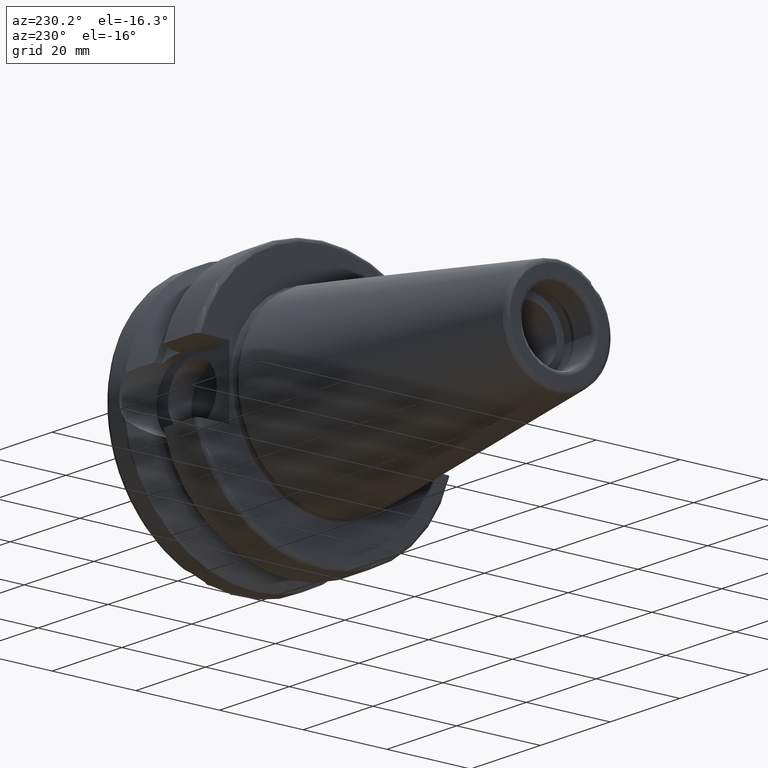
[diagram: clean part render]
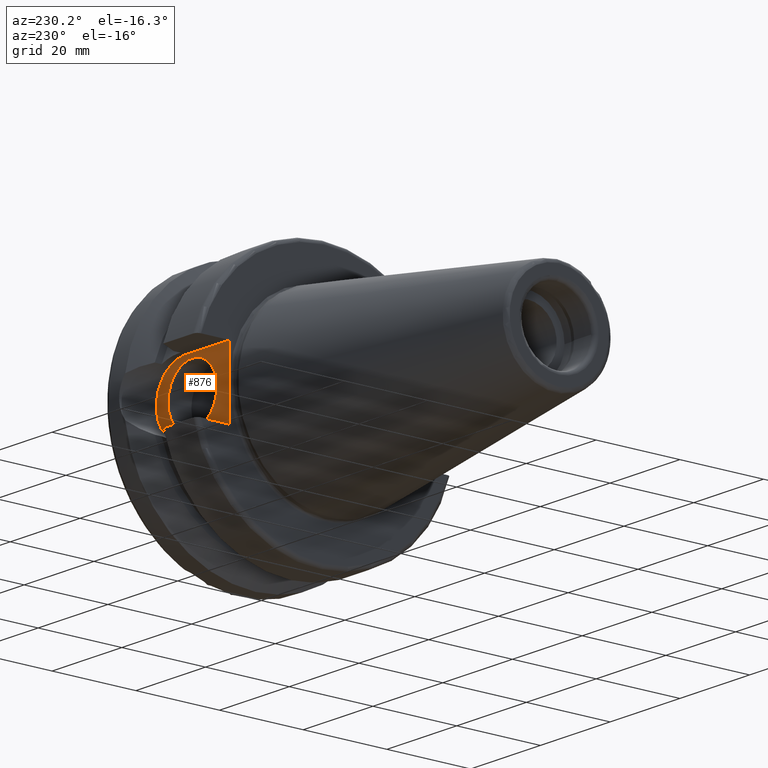
[diagram: same view with one face highlighted and labeled with its STEP entity id]
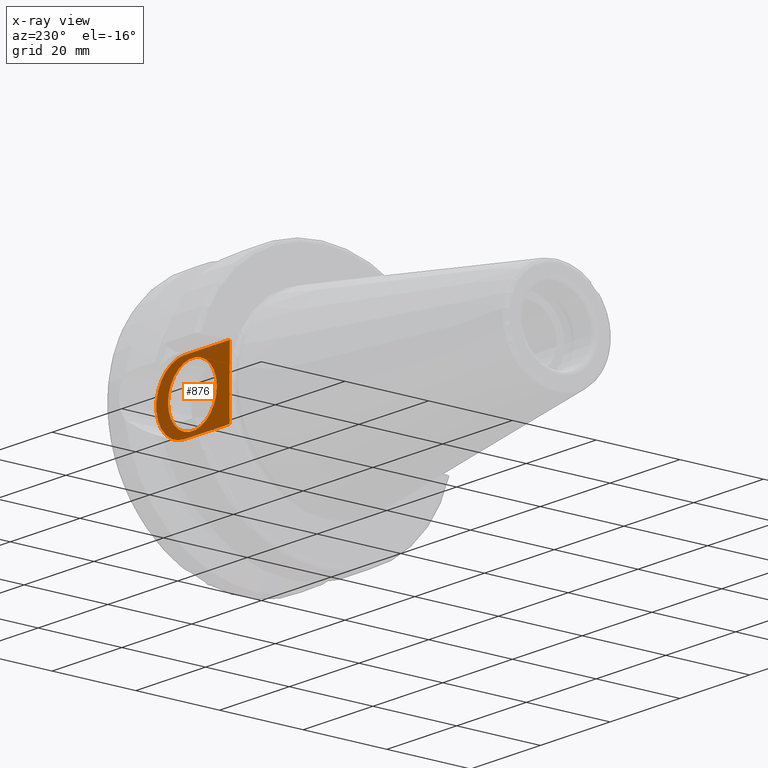
[diagram: x-ray of the same camera — body ghosted, the highlighted face saturated]
A machine part, auxiliary view. The second image highlights one B-rep face of the part: STEP entity #876.
The next image is the same camera in x-ray: the body ghosted, the highlighted face saturated — about 0% of this face is hidden behind the body in this view.
In plain terms, the highlighted planar face has unit normal (0, 1, 0).
Its self-contained STEP definition (entity closure, byte-faithful):
#61=FACE_BOUND('',#181,.T.);
#79=PLANE('',#989);
#118=FACE_OUTER_BOUND('',#180,.T.);
#180=EDGE_LOOP('',(#731,#732,#733,#734));
#181=EDGE_LOOP('',(#735));
#236=LINE('',#1606,#282);
#243=LINE('',#1649,#289);
#244=LINE('',#1651,#290);
#282=VECTOR('',#1200,10.);
#289=VECTOR('',#1213,10.);
#290=VECTOR('',#1216,10.);
#297=CIRCLE('',#921,7.);
#332=CIRCLE('',#987,8.05);
#358=VERTEX_POINT('',#1315);
#418=VERTEX_POINT('',#1603);
#419=VERTEX_POINT('',#1605);
#426=VERTEX_POINT('',#1643);
#427=VERTEX_POINT('',#1647);
#442=EDGE_CURVE('',#358,#358,#297,.T.);
#525=EDGE_CURVE('',#419,#418,#236,.T.);
#535=EDGE_CURVE('',#418,#426,#332,.T.);
#537=EDGE_CURVE('',#426,#427,#243,.T.);
#538=EDGE_CURVE('',#419,#427,#244,.T.);
#731=ORIENTED_EDGE('',*,*,#537,.T.);
#732=ORIENTED_EDGE('',*,*,#538,.F.);
#733=ORIENTED_EDGE('',*,*,#525,.T.);
#734=ORIENTED_EDGE('',*,*,#535,.T.);
#735=ORIENTED_EDGE('',*,*,#442,.T.);
#876=ADVANCED_FACE('',(#118,#61),#79,.T.);
#921=AXIS2_PLACEMENT_3D('',#1316,#1039,#1040);
#987=AXIS2_PLACEMENT_3D('',#1645,#1208,#1209);
#989=AXIS2_PLACEMENT_3D('',#1650,#1214,#1215);
#1039=DIRECTION('center_axis',(0.,-1.,0.));
#1040=DIRECTION('ref_axis',(1.,0.,0.));
#1200=DIRECTION('',(1.,0.,8.57315076930623E-17));
#1208=DIRECTION('center_axis',(0.,1.,0.));
#1209=DIRECTION('ref_axis',(0.,0.,1.));
#1213=DIRECTION('',(-1.,0.,-8.57315076930623E-17));
#1214=DIRECTION('center_axis',(0.,1.,0.));
#1215=DIRECTION('ref_axis',(0.,0.,1.));
#1216=DIRECTION('',(0.,0.,-1.));
#1315=CARTESIAN_POINT('',(5.65,22.6,8.57252759403147E-16));
#1316=CARTESIAN_POINT('Origin',(12.65,22.6,0.));
#1603=CARTESIAN_POINT('',(14.95,22.6,8.05));
#1605=CARTESIAN_POINT('',(1.99999999999999,22.6,8.05));
#1606=CARTESIAN_POINT('',(1.99999999999999,22.6,8.05));
#1643=CARTESIAN_POINT('',(14.95,22.6,-8.05));
#1645=CARTESIAN_POINT('Origin',(14.95,22.6,0.));
#1647=CARTESIAN_POINT('',(1.99999999999999,22.6,-8.05));
#1649=CARTESIAN_POINT('',(14.95,22.6,-8.05));
#1650=CARTESIAN_POINT('Origin',(12.5,22.6,0.));
#1651=CARTESIAN_POINT('',(1.99999999999999,22.6,0.));